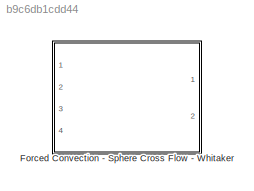
MODEL slx_b9c6db1cdd44
KIND library
CONFIG AbsTol = auto
CONFIG FixedStep = auto
CONFIG MaxStep = auto
CONFIG MinStep = auto
CONFIG RelTol = 1e-3
CONFIG SampleTimeConstraint = Unconstrained
CONFIG Solver = ode45
CONFIG SolverMode = Auto
CONFIG SolverName = ode45
CONFIG StartTime = 0.0
CONFIG StopTime = 10.0
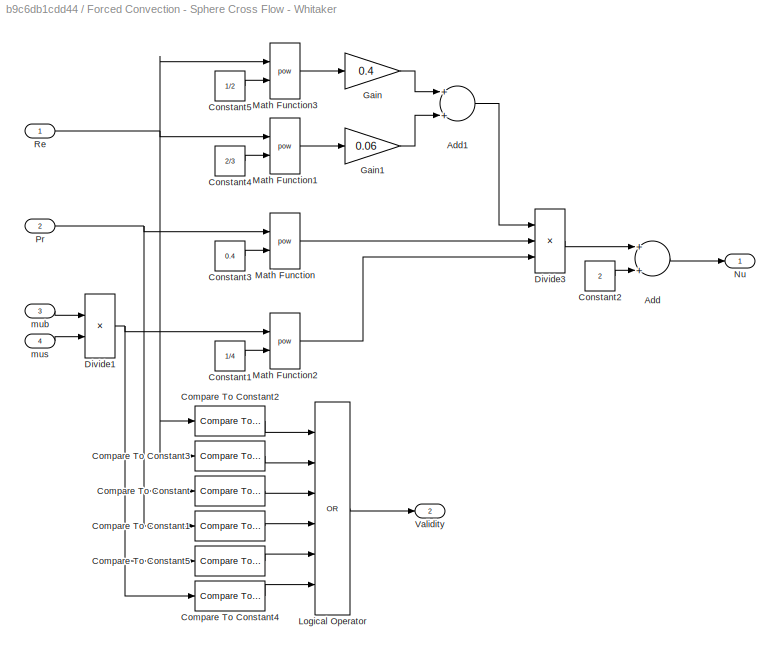
BLOCK [SubSystem] Forced Convection - Sphere Cross Flow - Whitaker
  Ports = [4, 2]
  RequestExecContextInheritance = off
BLOCK [Sum] Forced Convection - Sphere Cross Flow - Whitaker/Add
  InputSameDT = off
  OutDataTypeStr = Inherit: Inherit via internal rule
  Ports = [2, 1]
  SaturateOnIntegerOverflow = off
BLOCK [Sum] Forced Convection - Sphere Cross Flow - Whitaker/Add1
  InputSameDT = off
  OutDataTypeStr = Inherit: Inherit via internal rule
  Ports = [2, 1]
  SaturateOnIntegerOverflow = off
BLOCK [Reference] Forced Convection - Sphere Cross Flow - Whitaker/Compare To Constant  REF=simulink/Logic and Bit
Operations/Compare
To Constant
  OutDataTypeStr = boolean
  Ports = [1, 1]
  SourceBlock = simulink/Logic and Bit\nOperations/Compare\nTo Constant
  SourceType = Compare To Constant
  ZeroCross = on
  const = 0.71
  relop = <
BLOCK [Reference] Forced Convection - Sphere Cross Flow - Whitaker/Compare To Constant1  REF=simulink/Logic and Bit
Operations/Compare
To Constant
  OutDataTypeStr = boolean
  Ports = [1, 1]
  SourceBlock = simulink/Logic and Bit\nOperations/Compare\nTo Constant
  SourceType = Compare To Constant
  ZeroCross = on
  const = 380
  relop = >
BLOCK [Reference] Forced Convection - Sphere Cross Flow - Whitaker/Compare To Constant2  REF=simulink/Logic and Bit
Operations/Compare
To Constant
  OutDataTypeStr = boolean
  Ports = [1, 1]
  SourceBlock = simulink/Logic and Bit\nOperations/Compare\nTo Constant
  SourceType = Compare To Constant
  ZeroCross = on
  const = 3.5
  relop = <
BLOCK [Reference] Forced Convection - Sphere Cross Flow - Whitaker/Compare To Constant3  REF=simulink/Logic and Bit
Operations/Compare
To Constant
  OutDataTypeStr = boolean
  Ports = [1, 1]
  SourceBlock = simulink/Logic and Bit\nOperations/Compare\nTo Constant
  SourceType = Compare To Constant
  ZeroCross = on
  const = 76000
  relop = >
BLOCK [Reference] Forced Convection - Sphere Cross Flow - Whitaker/Compare To Constant4  REF=simulink/Logic and Bit
Operations/Compare
To Constant
  OutDataTypeStr = boolean
  Ports = [1, 1]
  SourceBlock = simulink/Logic and Bit\nOperations/Compare\nTo Constant
  SourceType = Compare To Constant
  ZeroCross = on
  const = 3.2
  relop = >
BLOCK [Reference] Forced Convection - Sphere Cross Flow - Whitaker/Compare To Constant5  REF=simulink/Logic and Bit
Operations/Compare
To Constant
  OutDataTypeStr = boolean
  Ports = [1, 1]
  SourceBlock = simulink/Logic and Bit\nOperations/Compare\nTo Constant
  SourceType = Compare To Constant
  ZeroCross = on
  const = 1
  relop = <
BLOCK [Constant] Forced Convection - Sphere Cross Flow - Whitaker/Constant1
  Value = 1/4
BLOCK [Constant] Forced Convection - Sphere Cross Flow - Whitaker/Constant2
  Value = 2
BLOCK [Constant] Forced Convection - Sphere Cross Flow - Whitaker/Constant3
  Value = 0.4
BLOCK [Constant] Forced Convection - Sphere Cross Flow - Whitaker/Constant4
  Value = 2/3
BLOCK [Constant] Forced Convection - Sphere Cross Flow - Whitaker/Constant5
  Value = 1/2
BLOCK [Product] Forced Convection - Sphere Cross Flow - Whitaker/Divide1
  InputSameDT = off
  Inputs = */
  OutDataTypeStr = Inherit: Inherit via internal rule
  Ports = [2, 1]
  RndMeth = Floor
  SaturateOnIntegerOverflow = off
BLOCK [Product] Forced Convection - Sphere Cross Flow - Whitaker/Divide3
  InputSameDT = off
  Inputs = ***
  OutDataTypeStr = Inherit: Inherit via internal rule
  Ports = [3, 1]
  RndMeth = Floor
  SaturateOnIntegerOverflow = off
BLOCK [Gain] Forced Convection - Sphere Cross Flow - Whitaker/Gain
  Gain = 0.4
  OutDataTypeStr = Inherit: Inherit via internal rule
  ParamDataTypeStr = Inherit: Inherit via internal rule
  SaturateOnIntegerOverflow = off
BLOCK [Gain] Forced Convection - Sphere Cross Flow - Whitaker/Gain1
  Gain = 0.06
  OutDataTypeStr = Inherit: Inherit via internal rule
  ParamDataTypeStr = Inherit: Inherit via internal rule
  SaturateOnIntegerOverflow = off
BLOCK [Logic] Forced Convection - Sphere Cross Flow - Whitaker/Logical Operator
  AllPortsSameDT = off
  Inputs = 6
  Operator = OR
  OutDataTypeStr = boolean
  Ports = [6, 1]
BLOCK [Math] Forced Convection - Sphere Cross Flow - Whitaker/Math Function
  Operator = pow
  Ports = [2, 1]
BLOCK [Math] Forced Convection - Sphere Cross Flow - Whitaker/Math Function1
  Operator = pow
  Ports = [2, 1]
BLOCK [Math] Forced Convection - Sphere Cross Flow - Whitaker/Math Function2
  Operator = pow
  Ports = [2, 1]
BLOCK [Math] Forced Convection - Sphere Cross Flow - Whitaker/Math Function3
  Operator = pow
  Ports = [2, 1]
BLOCK [Outport] Forced Convection - Sphere Cross Flow - Whitaker/Nu
  IconDisplay = Port number
BLOCK [Inport] Forced Convection - Sphere Cross Flow - Whitaker/Pr
  IconDisplay = Port number
  Port = 2
BLOCK [Inport] Forced Convection - Sphere Cross Flow - Whitaker/Re
  IconDisplay = Port number
BLOCK [Outport] Forced Convection - Sphere Cross Flow - Whitaker/Validity
  IconDisplay = Port number
  Port = 2
BLOCK [Inport] Forced Convection - Sphere Cross Flow - Whitaker/mub
  IconDisplay = Port number
  Port = 3
BLOCK [Inport] Forced Convection - Sphere Cross Flow - Whitaker/mus
  IconDisplay = Port number
  Port = 4
LINE Forced Convection - Sphere Cross Flow - Whitaker/Add1:1 -> Forced Convection - Sphere Cross Flow - Whitaker/Divide3:1
LINE Forced Convection - Sphere Cross Flow - Whitaker/Add:1 -> Forced Convection - Sphere Cross Flow - Whitaker/Nu:1
LINE Forced Convection - Sphere Cross Flow - Whitaker/Compare To Constant1:1 -> Forced Convection - Sphere Cross Flow - Whitaker/Logical Operator:4
LINE Forced Convection - Sphere Cross Flow - Whitaker/Compare To Constant2:1 -> Forced Convection - Sphere Cross Flow - Whitaker/Logical Operator:1
LINE Forced Convection - Sphere Cross Flow - Whitaker/Compare To Constant3:1 -> Forced Convection - Sphere Cross Flow - Whitaker/Logical Operator:2
LINE Forced Convection - Sphere Cross Flow - Whitaker/Compare To Constant4:1 -> Forced Convection - Sphere Cross Flow - Whitaker/Logical Operator:6
LINE Forced Convection - Sphere Cross Flow - Whitaker/Compare To Constant5:1 -> Forced Convection - Sphere Cross Flow - Whitaker/Logical Operator:5
LINE Forced Convection - Sphere Cross Flow - Whitaker/Compare To Constant:1 -> Forced Convection - Sphere Cross Flow - Whitaker/Logical Operator:3
LINE Forced Convection - Sphere Cross Flow - Whitaker/Constant1:1 -> Forced Convection - Sphere Cross Flow - Whitaker/Math Function2:2
LINE Forced Convection - Sphere Cross Flow - Whitaker/Constant2:1 -> Forced Convection - Sphere Cross Flow - Whitaker/Add:2
LINE Forced Convection - Sphere Cross Flow - Whitaker/Constant3:1 -> Forced Convection - Sphere Cross Flow - Whitaker/Math Function:2
LINE Forced Convection - Sphere Cross Flow - Whitaker/Constant4:1 -> Forced Convection - Sphere Cross Flow - Whitaker/Math Function1:2
LINE Forced Convection - Sphere Cross Flow - Whitaker/Constant5:1 -> Forced Convection - Sphere Cross Flow - Whitaker/Math Function3:2
NET Forced Convection - Sphere Cross Flow - Whitaker/Divide1:1 -> Forced Convection - Sphere Cross Flow - Whitaker/Compare To Constant4:1, Forced Convection - Sphere Cross Flow - Whitaker/Compare To Constant5:1, Forced Convection - Sphere Cross Flow - Whitaker/Math Function2:1
LINE Forced Convection - Sphere Cross Flow - Whitaker/Divide3:1 -> Forced Convection - Sphere Cross Flow - Whitaker/Add:1
LINE Forced Convection - Sphere Cross Flow - Whitaker/Gain1:1 -> Forced Convection - Sphere Cross Flow - Whitaker/Add1:2
LINE Forced Convection - Sphere Cross Flow - Whitaker/Gain:1 -> Forced Convection - Sphere Cross Flow - Whitaker/Add1:1
LINE Forced Convection - Sphere Cross Flow - Whitaker/Logical Operator:1 -> Forced Convection - Sphere Cross Flow - Whitaker/Validity:1
LINE Forced Convection - Sphere Cross Flow - Whitaker/Math Function1:1 -> Forced Convection - Sphere Cross Flow - Whitaker/Gain1:1
LINE Forced Convection - Sphere Cross Flow - Whitaker/Math Function2:1 -> Forced Convection - Sphere Cross Flow - Whitaker/Divide3:3
LINE Forced Convection - Sphere Cross Flow - Whitaker/Math Function3:1 -> Forced Convection - Sphere Cross Flow - Whitaker/Gain:1
LINE Forced Convection - Sphere Cross Flow - Whitaker/Math Function:1 -> Forced Convection - Sphere Cross Flow - Whitaker/Divide3:2
NET Forced Convection - Sphere Cross Flow - Whitaker/Pr:1 -> Forced Convection - Sphere Cross Flow - Whitaker/Compare To Constant1:1, Forced Convection - Sphere Cross Flow - Whitaker/Compare To Constant:1, Forced Convection - Sphere Cross Flow - Whitaker/Math Function:1
NET Forced Convection - Sphere Cross Flow - Whitaker/Re:1 -> Forced Convection - Sphere Cross Flow - Whitaker/Compare To Constant2:1, Forced Convection - Sphere Cross Flow - Whitaker/Compare To Constant3:1, Forced Convection - Sphere Cross Flow - Whitaker/Math Function1:1, Forced Convection - Sphere Cross Flow - Whitaker/Math Function3:1
LINE Forced Convection - Sphere Cross Flow - Whitaker/mub:1 -> Forced Convection - Sphere Cross Flow - Whitaker/Divide1:1
LINE Forced Convection - Sphere Cross Flow - Whitaker/mus:1 -> Forced Convection - Sphere Cross Flow - Whitaker/Divide1:2
note: NET lines group one-source signal fan-out (src -> all destinations, sorted); 1:1 wires keep LINE
